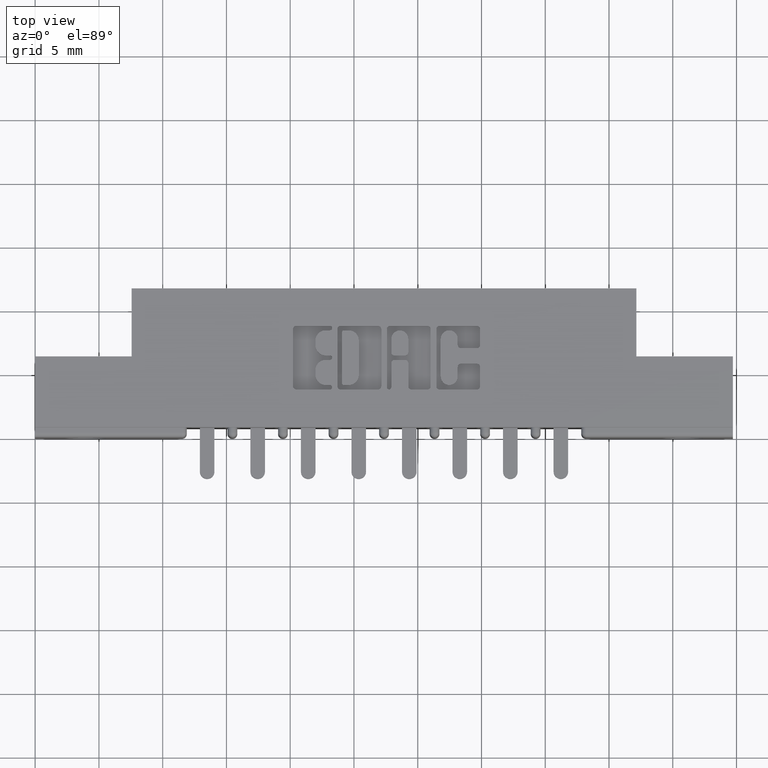
[diagram: clean part render]
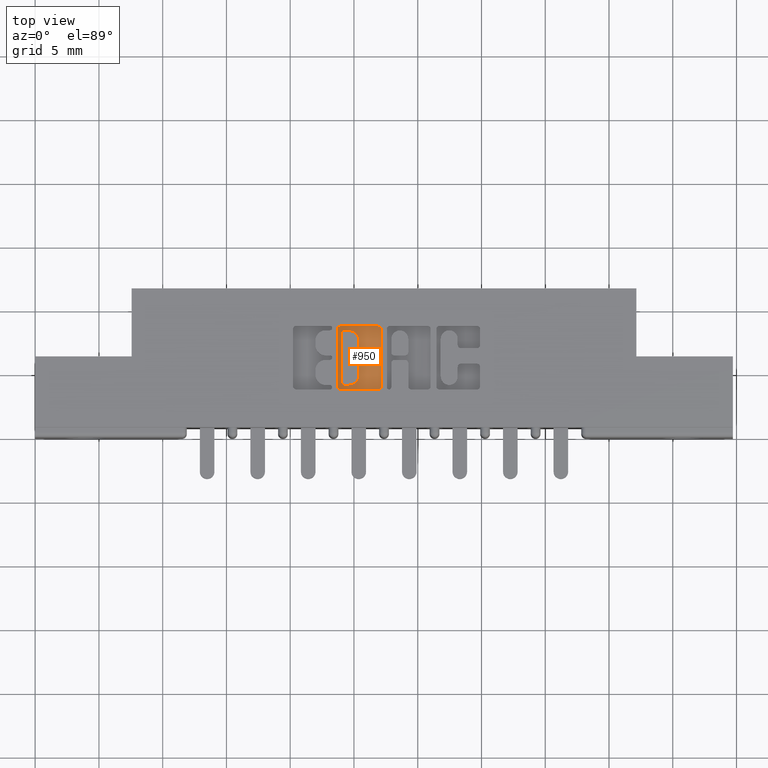
[diagram: same view with one face highlighted and labeled with its STEP entity id]
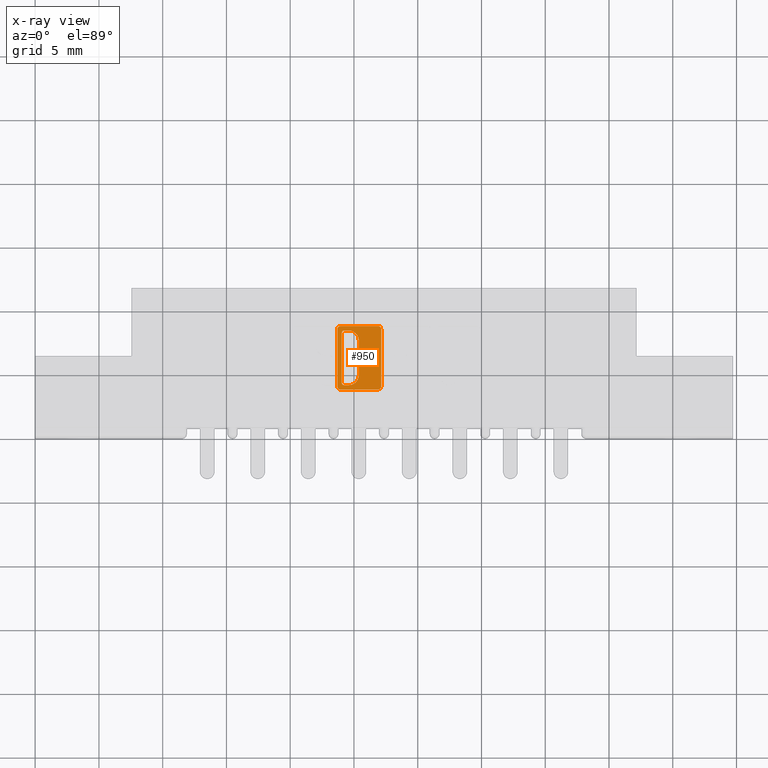
[diagram: x-ray of the same camera — body ghosted, the highlighted face saturated]
A machine part, top view. The second image highlights one B-rep face of the part: STEP entity #950.
The next image is the same camera in x-ray: the body ghosted, the highlighted face saturated — about 0% of this face is hidden behind the body in this view.
In plain terms, the highlighted planar face has unit normal (0, 0, 1).
Its self-contained STEP definition (entity closure, byte-faithful):
#9 = AXIS2_PLACEMENT_3D ( 'NONE', #6762, #10758, #11597 ) ;
#11 = DIRECTION ( 'NONE',  ( 0.0000000000000000000, -1.000000000000000000, 0.0000000000000000000 ) ) ;
#18 = VERTEX_POINT ( 'NONE', #6401 ) ;
#89 = ORIENTED_EDGE ( 'NONE', *, *, #3299, .F. ) ;
#166 = AXIS2_PLACEMENT_3D ( 'NONE', #7818, #2033, #6840 ) ;
#233 = CARTESIAN_POINT ( 'NONE',  ( 0.9466969780444988200, 0.0000000000000000000, -0.01000000000000000000 ) ) ;
#299 = DIRECTION ( 'NONE',  ( -0.0000000000000000000, 0.0000000000000000000, 1.000000000000000000 ) ) ;
#316 = AXIS2_PLACEMENT_3D ( 'NONE', #7370, #1536, #9335 ) ;
#373 = DIRECTION ( 'NONE',  ( 1.000000000000000000, 0.0000000000000000000, 0.0000000000000000000 ) ) ;
#436 = EDGE_CURVE ( 'NONE', #10065, #12173, #12515, .T. ) ;
#479 = VECTOR ( 'NONE', #7481, 39.37007874015748100 ) ;
#547 = EDGE_CURVE ( 'NONE', #5632, #11529, #6220, .T. ) ;
#551 = CARTESIAN_POINT ( 'NONE',  ( 0.9678006689826735800, 0.1610852362473173000, -0.01000000000000000000 ) ) ;
#610 = CIRCLE ( 'NONE', #316, 0.009815670203841039800 ) ;
#642 = AXIS2_PLACEMENT_3D ( 'NONE', #4140, #9186, #373 ) ;
#778 = ORIENTED_EDGE ( 'NONE', *, *, #3267, .T. ) ;
#823 = CARTESIAN_POINT ( 'NONE',  ( 0.9427707099629760700, 0.1571589681657930300, -0.01000000000000000000 ) ) ;
#950 = ADVANCED_FACE ( 'NONE', ( #6928, #6181 ), #10174, .T. ) ;
#983 = CIRCLE ( 'NONE', #1607, 0.006870969142663185300 ) ;
#1031 = DIRECTION ( 'NONE',  ( 0.0000000000000000000, -1.000000000000000000, 0.0000000000000000000 ) ) ;
#1125 = CARTESIAN_POINT ( 'NONE',  ( 0.9535679471871619800, 0.1610852362473173000, -0.01000000000000000000 ) ) ;
#1261 = VECTOR ( 'NONE', #1031, 39.37007874015748100 ) ;
#1281 = DIRECTION ( 'NONE',  ( 1.000000000000000000, 0.0000000000000000000, 0.0000000000000000000 ) ) ;
#1303 = CARTESIAN_POINT ( 'NONE',  ( 0.9329550397591692700, 0.1571589681657930300, -0.01000000000000000000 ) ) ;
#1444 = VERTEX_POINT ( 'NONE', #12343 ) ;
#1536 = DIRECTION ( 'NONE',  ( -0.0000000000000000000, 0.0000000000000000000, 1.000000000000000000 ) ) ;
#1607 = AXIS2_PLACEMENT_3D ( 'NONE', #6742, #299, #1281 ) ;
#1625 = CARTESIAN_POINT ( 'NONE',  ( 0.9678006689826780300, 0.3299147637527275500, -0.01000000000000000000 ) ) ;
#1776 = VERTEX_POINT ( 'NONE', #1303 ) ;
#1785 = LINE ( 'NONE', #1887, #11893 ) ;
#1837 = DIRECTION ( 'NONE',  ( -0.0000000000000000000, 0.0000000000000000000, 1.000000000000000000 ) ) ;
#1887 = CARTESIAN_POINT ( 'NONE',  ( 0.9992108136348437600, 0.0000000000000000000, -0.01000000000000000000 ) ) ;
#2033 = DIRECTION ( 'NONE',  ( -0.0000000000000000000, 0.0000000000000000000, 1.000000000000000000 ) ) ;
#2047 = EDGE_LOOP ( 'NONE', ( #11781, #11665, #778, #11843, #4256, #12203, #8651, #6350 ) ) ;
#2054 = ORIENTED_EDGE ( 'NONE', *, *, #436, .F. ) ;
#2551 = EDGE_CURVE ( 'NONE', #5875, #3408, #7654, .T. ) ;
#2575 = EDGE_CURVE ( 'NONE', #4510, #12173, #1785, .T. ) ;
#2594 = CIRCLE ( 'NONE', #6838, 0.009815670203806891800 ) ;
#2967 = DIRECTION ( 'NONE',  ( 1.000000000000000000, 0.0000000000000000000, 0.0000000000000000000 ) ) ;
#3030 = VERTEX_POINT ( 'NONE', #1625 ) ;
#3074 = ORIENTED_EDGE ( 'NONE', *, *, #12017, .T. ) ;
#3103 = LINE ( 'NONE', #10814, #8944 ) ;
#3208 = EDGE_CURVE ( 'NONE', #1776, #5632, #6329, .T. ) ;
#3267 = EDGE_CURVE ( 'NONE', #12682, #5875, #5890, .T. ) ;
#3299 = EDGE_CURVE ( 'NONE', #9909, #6483, #983, .T. ) ;
#3355 = CARTESIAN_POINT ( 'NONE',  ( 0.9992108136348437600, 0.1924953808994875600, -0.01000000000000000000 ) ) ;
#3408 = VERTEX_POINT ( 'NONE', #4805 ) ;
#3489 = VECTOR ( 'NONE', #11085, 39.37007874015748100 ) ;
#3591 = ORIENTED_EDGE ( 'NONE', *, *, #6297, .F. ) ;
#3830 = EDGE_CURVE ( 'NONE', #9909, #6790, #12647, .T. ) ;
#3839 = LINE ( 'NONE', #5967, #1261 ) ;
#3908 = CIRCLE ( 'NONE', #9, 0.03141014465217194900 ) ;
#4061 = DIRECTION ( 'NONE',  ( 0.0000000000000000000, 1.000000000000000000, -0.0000000000000000000 ) ) ;
#4140 = CARTESIAN_POINT ( 'NONE',  ( 0.0000000000000000000, 0.0000000000000000000, -0.01000000000000000000 ) ) ;
#4256 = ORIENTED_EDGE ( 'NONE', *, *, #5936, .T. ) ;
#4378 = CARTESIAN_POINT ( 'NONE',  ( 1.058595618367862200, 0.1571589681657930300, -0.01000000000000000000 ) ) ;
#4481 = CARTESIAN_POINT ( 'NONE',  ( 0.9678006689826735800, 0.1924953808994875600, -0.01000000000000000000 ) ) ;
#4510 = VERTEX_POINT ( 'NONE', #7421 ) ;
#4662 = DIRECTION ( 'NONE',  ( 1.000000000000000000, 0.0000000000000000000, 0.0000000000000000000 ) ) ;
#4805 = CARTESIAN_POINT ( 'NONE',  ( 0.9329550397591692700, 0.3338410318342131500, -0.01000000000000000000 ) ) ;
#5504 = DIRECTION ( 'NONE',  ( -0.0000000000000000000, 0.0000000000000000000, 1.000000000000000000 ) ) ;
#5632 = VERTEX_POINT ( 'NONE', #6924 ) ;
#5875 = VERTEX_POINT ( 'NONE', #12514 ) ;
#5890 = LINE ( 'NONE', #7905, #10318 ) ;
#5936 = EDGE_CURVE ( 'NONE', #3408, #1776, #3839, .T. ) ;
#5967 = CARTESIAN_POINT ( 'NONE',  ( 0.9329550397591692700, 0.0000000000000000000, -0.01000000000000000000 ) ) ;
#6019 = EDGE_CURVE ( 'NONE', #9513, #18, #8313, .T. ) ;
#6140 = LINE ( 'NONE', #10997, #3489 ) ;
#6181 = FACE_OUTER_BOUND ( 'NONE', #2047, .T. ) ;
#6220 = LINE ( 'NONE', #11740, #12505 ) ;
#6297 = EDGE_CURVE ( 'NONE', #4510, #3030, #3908, .T. ) ;
#6329 = CIRCLE ( 'NONE', #8375, 0.009815670203806754800 ) ;
#6350 = ORIENTED_EDGE ( 'NONE', *, *, #11330, .T. ) ;
#6401 = CARTESIAN_POINT ( 'NONE',  ( 1.068411288571669000, 0.3338410318342131500, -0.01000000000000000000 ) ) ;
#6435 = AXIS2_PLACEMENT_3D ( 'NONE', #4481, #5504, #12355 ) ;
#6483 = VERTEX_POINT ( 'NONE', #1125 ) ;
#6618 = DIRECTION ( 'NONE',  ( 1.000000000000000000, 0.0000000000000000000, 0.0000000000000000000 ) ) ;
#6742 = CARTESIAN_POINT ( 'NONE',  ( 0.9535679471871619800, 0.1679562053899805500, -0.01000000000000000000 ) ) ;
#6762 = CARTESIAN_POINT ( 'NONE',  ( 0.9678006689826718100, 0.2985046191005555900, -0.01000000000000000000 ) ) ;
#6790 = VERTEX_POINT ( 'NONE', #6824 ) ;
#6824 = CARTESIAN_POINT ( 'NONE',  ( 0.9466969780444988200, 0.3230437946100597800, -0.01000000000000000000 ) ) ;
#6838 = AXIS2_PLACEMENT_3D ( 'NONE', #4378, #9302, #4662 ) ;
#6840 = DIRECTION ( 'NONE',  ( 1.000000000000000000, 0.0000000000000000000, 0.0000000000000000000 ) ) ;
#6924 = CARTESIAN_POINT ( 'NONE',  ( 0.9427707099629760700, 0.1473432979619862500, -0.01000000000000000000 ) ) ;
#6928 = FACE_BOUND ( 'NONE', #7172, .T. ) ;
#7172 = EDGE_LOOP ( 'NONE', ( #11393, #10029, #3591, #8470, #2054, #3074, #89, #7817 ) ) ;
#7370 = CARTESIAN_POINT ( 'NONE',  ( 1.058595618367828000, 0.3338410318342129900, -0.01000000000000000000 ) ) ;
#7404 = EDGE_CURVE ( 'NONE', #1444, #6790, #10237, .T. ) ;
#7421 = CARTESIAN_POINT ( 'NONE',  ( 0.9992108136348437600, 0.2985046191005555900, -0.01000000000000000000 ) ) ;
#7481 = DIRECTION ( 'NONE',  ( 0.0000000000000000000, 1.000000000000000000, -0.0000000000000000000 ) ) ;
#7654 = CIRCLE ( 'NONE', #8686, 0.009815670203840902800 ) ;
#7722 = CARTESIAN_POINT ( 'NONE',  ( 1.058595618367862200, 0.1473432979619862500, -0.01000000000000000000 ) ) ;
#7817 = ORIENTED_EDGE ( 'NONE', *, *, #3830, .T. ) ;
#7818 = CARTESIAN_POINT ( 'NONE',  ( 0.9535679471871665300, 0.3230437946100597800, -0.01000000000000000000 ) ) ;
#7905 = CARTESIAN_POINT ( 'NONE',  ( 0.0000000000000000000, 0.3436567020380540400, -0.01000000000000000000 ) ) ;
#8313 = LINE ( 'NONE', #11274, #479 ) ;
#8375 = AXIS2_PLACEMENT_3D ( 'NONE', #823, #12510, #6618 ) ;
#8470 = ORIENTED_EDGE ( 'NONE', *, *, #2575, .T. ) ;
#8651 = ORIENTED_EDGE ( 'NONE', *, *, #547, .T. ) ;
#8686 = AXIS2_PLACEMENT_3D ( 'NONE', #10750, #1837, #9695 ) ;
#8698 = DIRECTION ( 'NONE',  ( -1.000000000000000000, 0.0000000000000000000, 0.0000000000000000000 ) ) ;
#8944 = VECTOR ( 'NONE', #11866, 39.37007874015748100 ) ;
#9186 = DIRECTION ( 'NONE',  ( -0.0000000000000000000, 0.0000000000000000000, 1.000000000000000000 ) ) ;
#9302 = DIRECTION ( 'NONE',  ( -0.0000000000000000000, 0.0000000000000000000, 1.000000000000000000 ) ) ;
#9335 = DIRECTION ( 'NONE',  ( 1.000000000000000000, 0.0000000000000000000, 0.0000000000000000000 ) ) ;
#9471 = CARTESIAN_POINT ( 'NONE',  ( 1.068411288571669000, 0.1571589681657930300, -0.01000000000000000000 ) ) ;
#9513 = VERTEX_POINT ( 'NONE', #9471 ) ;
#9695 = DIRECTION ( 'NONE',  ( 1.000000000000000000, 0.0000000000000000000, 0.0000000000000000000 ) ) ;
#9909 = VERTEX_POINT ( 'NONE', #10780 ) ;
#10029 = ORIENTED_EDGE ( 'NONE', *, *, #10366, .T. ) ;
#10065 = VERTEX_POINT ( 'NONE', #551 ) ;
#10174 = PLANE ( 'NONE',  #642 ) ;
#10237 = CIRCLE ( 'NONE', #166, 0.006870969142667693000 ) ;
#10318 = VECTOR ( 'NONE', #8698, 39.37007874015748100 ) ;
#10366 = EDGE_CURVE ( 'NONE', #1444, #3030, #3103, .T. ) ;
#10750 = CARTESIAN_POINT ( 'NONE',  ( 0.9427707099630102700, 0.3338410318342131500, -0.01000000000000000000 ) ) ;
#10758 = DIRECTION ( 'NONE',  ( -0.0000000000000000000, 0.0000000000000000000, 1.000000000000000000 ) ) ;
#10780 = CARTESIAN_POINT ( 'NONE',  ( 0.9466969780444988200, 0.1679562053899805500, -0.01000000000000000000 ) ) ;
#10814 = CARTESIAN_POINT ( 'NONE',  ( 0.0000000000000000000, 0.3299147637527275500, -0.01000000000000000000 ) ) ;
#10997 = CARTESIAN_POINT ( 'NONE',  ( 0.0000000000000000000, 0.1610852362473173000, -0.01000000000000000000 ) ) ;
#11085 = DIRECTION ( 'NONE',  ( -1.000000000000000000, 0.0000000000000000000, 0.0000000000000000000 ) ) ;
#11274 = CARTESIAN_POINT ( 'NONE',  ( 1.068411288571669000, 0.0000000000000000000, -0.01000000000000000000 ) ) ;
#11330 = EDGE_CURVE ( 'NONE', #11529, #9513, #2594, .T. ) ;
#11393 = ORIENTED_EDGE ( 'NONE', *, *, #7404, .F. ) ;
#11529 = VERTEX_POINT ( 'NONE', #7722 ) ;
#11597 = DIRECTION ( 'NONE',  ( 1.000000000000000000, 0.0000000000000000000, 0.0000000000000000000 ) ) ;
#11630 = CARTESIAN_POINT ( 'NONE',  ( 1.058595618367896200, 0.3436567020380540400, -0.01000000000000000000 ) ) ;
#11665 = ORIENTED_EDGE ( 'NONE', *, *, #12434, .T. ) ;
#11740 = CARTESIAN_POINT ( 'NONE',  ( 0.0000000000000000000, 0.1473432979619862500, -0.01000000000000000000 ) ) ;
#11781 = ORIENTED_EDGE ( 'NONE', *, *, #6019, .T. ) ;
#11843 = ORIENTED_EDGE ( 'NONE', *, *, #2551, .T. ) ;
#11866 = DIRECTION ( 'NONE',  ( 1.000000000000000000, 0.0000000000000000000, 0.0000000000000000000 ) ) ;
#11893 = VECTOR ( 'NONE', #11, 39.37007874015748100 ) ;
#12017 = EDGE_CURVE ( 'NONE', #10065, #6483, #6140, .T. ) ;
#12173 = VERTEX_POINT ( 'NONE', #3355 ) ;
#12182 = VECTOR ( 'NONE', #4061, 39.37007874015748100 ) ;
#12203 = ORIENTED_EDGE ( 'NONE', *, *, #3208, .T. ) ;
#12343 = CARTESIAN_POINT ( 'NONE',  ( 0.9535679471871665300, 0.3299147637527275500, -0.01000000000000000000 ) ) ;
#12355 = DIRECTION ( 'NONE',  ( 1.000000000000000000, 0.0000000000000000000, 0.0000000000000000000 ) ) ;
#12434 = EDGE_CURVE ( 'NONE', #18, #12682, #610, .T. ) ;
#12505 = VECTOR ( 'NONE', #2967, 39.37007874015748100 ) ;
#12510 = DIRECTION ( 'NONE',  ( -0.0000000000000000000, 0.0000000000000000000, 1.000000000000000000 ) ) ;
#12514 = CARTESIAN_POINT ( 'NONE',  ( 0.9427707099630102700, 0.3436567020380540400, -0.01000000000000000000 ) ) ;
#12515 = CIRCLE ( 'NONE', #6435, 0.03141014465217017300 ) ;
#12647 = LINE ( 'NONE', #233, #12182 ) ;
#12682 = VERTEX_POINT ( 'NONE', #11630 ) ;